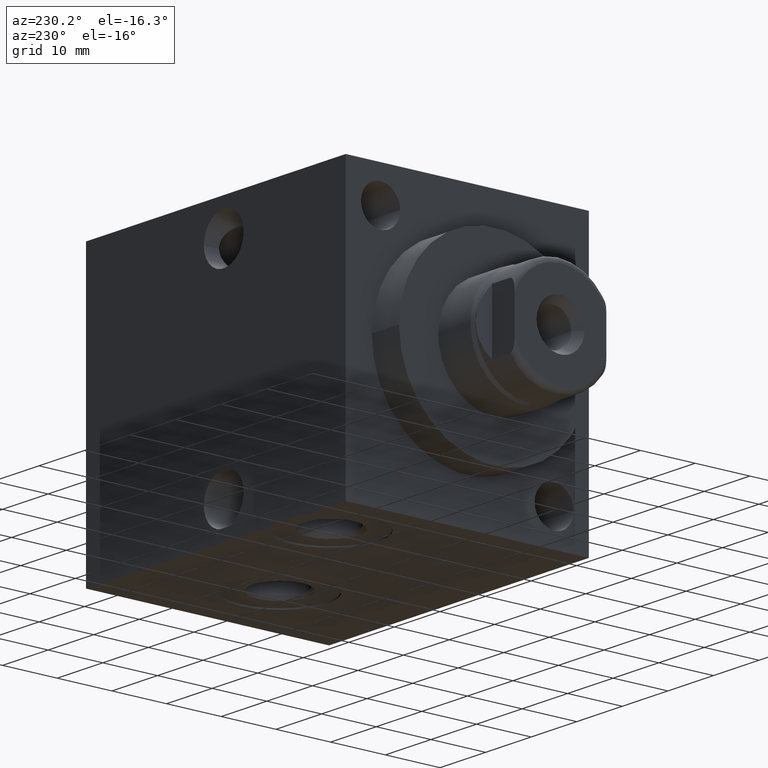
[diagram: clean part render]
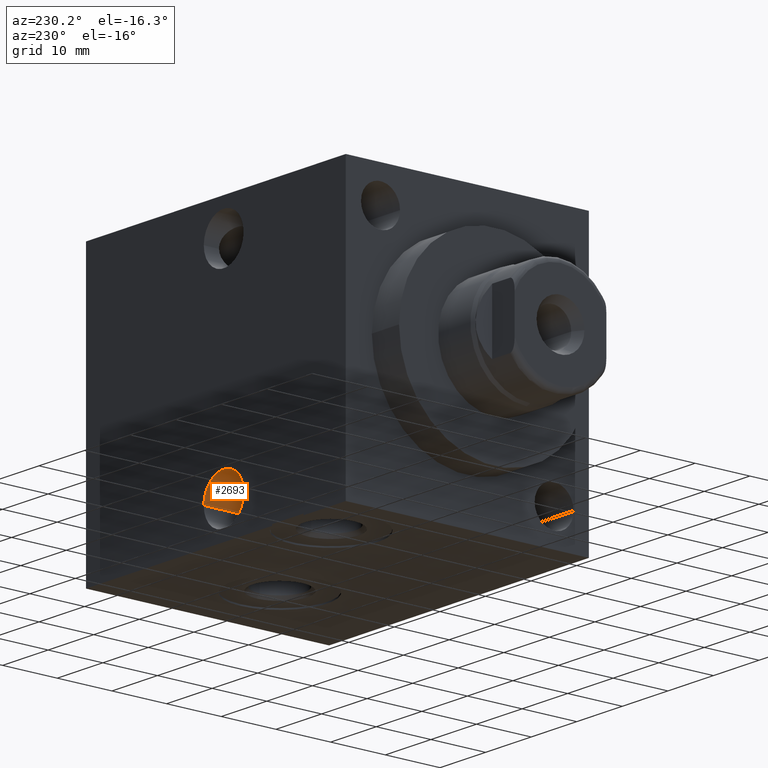
[diagram: same view with one face highlighted and labeled with its STEP entity id]
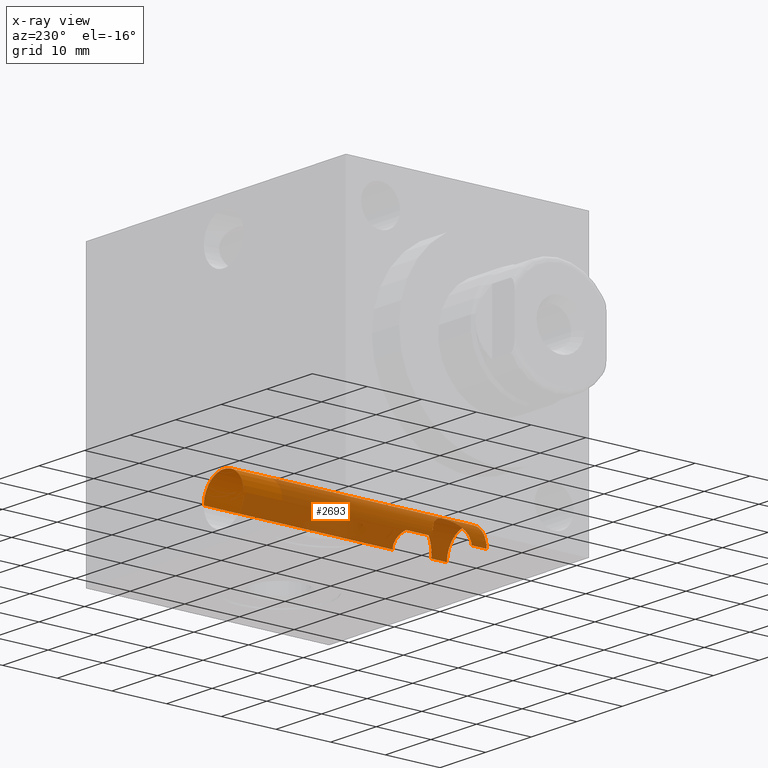
[diagram: x-ray of the same camera — body ghosted, the highlighted face saturated]
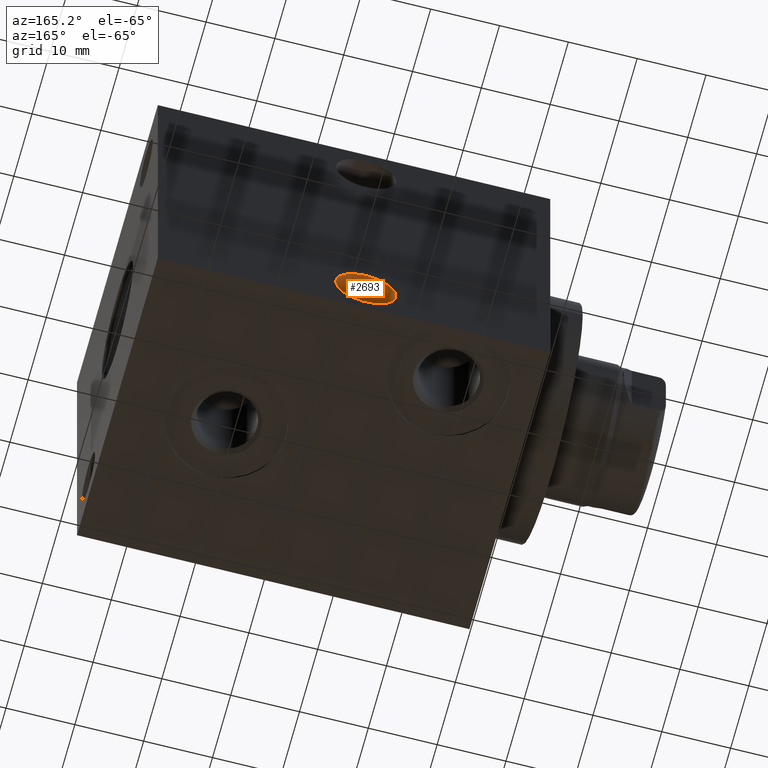
[diagram: same view with one face highlighted and labeled with its STEP entity id]
A machine part, auxiliary view. The second image highlights one B-rep face of the part: STEP entity #2693.
The next image is the same camera in x-ray: the body ghosted, the highlighted face saturated — about 78% of this face is hidden behind the body in this view.
A second angle (auxiliary view) of the same face is appended — the face is thin or edge-on in the first view.
In plain terms, the highlighted cylindrical surface (edge-blend (fillet) strip) has radius 4.369 mm, axis along (0, -1, 0).
Its self-contained STEP definition (entity closure, byte-faithful):
#598=CARTESIAN_POINT('',(2.6797E1,2.2225E1,-1.905E1));
#599=DIRECTION('',(0.E0,-1.E0,0.E0));
#600=DIRECTION('',(1.E0,0.E0,0.E0));
#601=AXIS2_PLACEMENT_3D('',#598,#599,#600);
#686=CARTESIAN_POINT('',(2.6797E1,-2.2225E1,-1.905E1));
#687=DIRECTION('',(0.E0,-1.E0,0.E0));
#688=DIRECTION('',(1.E0,0.E0,0.E0));
#689=AXIS2_PLACEMENT_3D('',#686,#687,#688);
#1197=CARTESIAN_POINT('',(2.2428E1,-1.23065E1,-1.905E1));
#1198=CARTESIAN_POINT('',(2.2428E1,-1.23065E1,-1.880714042471E1));
#1199=CARTESIAN_POINT('',(2.246858100033E1,-1.235601658674E1,
-1.832823511792E1));
#1200=CARTESIAN_POINT('',(2.263864558180E1,-1.256646460110E1,
-1.765492372784E1));
#1201=CARTESIAN_POINT('',(2.289127772720E1,-1.288850462507E1,
-1.705880112763E1));
#1202=CARTESIAN_POINT('',(2.320816159175E1,-1.331329244342E1,
-1.653497946056E1));
#1203=CARTESIAN_POINT('',(2.355989948914E1,-1.382995153063E1,
-1.610120747169E1));
#1204=CARTESIAN_POINT('',(2.388250586810E1,-1.438468563678E1,
-1.578737591831E1));
#1205=CARTESIAN_POINT('',(2.414098012707E1,-1.497635629900E1,
-1.557795625541E1));
#1206=CARTESIAN_POINT('',(2.428328724403E1,-1.558094661208E1,
-1.547646799754E1));
#1207=CARTESIAN_POINT('',(2.428108796117E1,-1.618575873833E1,
-1.547796945359E1));
#1208=CARTESIAN_POINT('',(2.413605437940E1,-1.678696200160E1,
-1.558167973805E1));
#1209=CARTESIAN_POINT('',(2.387817047612E1,-1.737313774894E1,
-1.579132983874E1));
#1210=CARTESIAN_POINT('',(2.355856070116E1,-1.792187298829E1,
-1.610297237395E1));
#1211=CARTESIAN_POINT('',(2.320993107570E1,-1.843417829003E1,
-1.653273790091E1));
#1212=CARTESIAN_POINT('',(2.289310121124E1,-1.885914471925E1,
-1.705516948242E1));
#1213=CARTESIAN_POINT('',(2.263914269798E1,-1.918292459291E1,
-1.765289522148E1));
#1214=CARTESIAN_POINT('',(2.246828693179E1,-1.939434535728E1,
-1.832943978825E1));
#1215=CARTESIAN_POINT('',(2.2428E1,-1.94435E1,-1.880782344083E1));
#1216=CARTESIAN_POINT('',(2.2428E1,-1.94435E1,-1.905E1));
#1228=CARTESIAN_POINT('',(3.1166E1,-1.94435E1,-1.905E1));
#1229=CARTESIAN_POINT('',(3.1166E1,-1.94435E1,-1.880715359577E1));
#1230=CARTESIAN_POINT('',(3.112546894886E1,-1.939404680603E1,
-1.832766714008E1));
#1231=CARTESIAN_POINT('',(3.095416124825E1,-1.918205809322E1,
-1.765075114366E1));
#1232=CARTESIAN_POINT('',(3.069958865976E1,-1.885744302998E1,
-1.705253908753E1));
#1233=CARTESIAN_POINT('',(3.038188437778E1,-1.843119435099E1,
-1.652946623751E1));
#1234=CARTESIAN_POINT('',(3.003087291953E1,-1.791493215042E1,
-1.609778771892E1));
#1235=CARTESIAN_POINT('',(2.970914944535E1,-1.736072334432E1,
-1.578532853191E1));
#1236=CARTESIAN_POINT('',(2.945133734086E1,-1.676892845640E1,
-1.557669532896E1));
#1237=CARTESIAN_POINT('',(2.930998166835E1,-1.616317074645E1,
-1.547596751731E1));
#1238=CARTESIAN_POINT('',(2.931363509729E1,-1.555864355658E1,
-1.547846136629E1));
#1239=CARTESIAN_POINT('',(2.945996607982E1,-1.495737518484E1,
-1.558320055945E1));
#1240=CARTESIAN_POINT('',(2.971796109369E1,-1.437297016043E1,
-1.579325243227E1));
#1241=CARTESIAN_POINT('',(3.003652494705E1,-1.382654126404E1,
-1.610427831996E1));
#1242=CARTESIAN_POINT('',(3.038352881863E1,-1.331662847958E1,
-1.653216825174E1));
#1243=CARTESIAN_POINT('',(3.069970553281E1,-1.289240655865E1,
-1.705289559208E1));
#1244=CARTESIAN_POINT('',(3.095431489108E1,-1.256774737781E1,
-1.765106649777E1));
#1245=CARTESIAN_POINT('',(3.112566929213E1,-1.235570766977E1,
-1.832883494298E1));
#1246=CARTESIAN_POINT('',(3.1166E1,-1.23065E1,-1.880765461730E1));
#1247=CARTESIAN_POINT('',(3.1166E1,-1.23065E1,-1.905E1));
#1259=DIRECTION('',(0.E0,-1.E0,0.E0));
#1260=VECTOR('',#1259,2.7815E0);
#1261=CARTESIAN_POINT('',(3.1166E1,-1.94435E1,-1.905E1));
#1262=LINE('',#1261,#1260);
#1266=DIRECTION('',(0.E0,-1.E0,0.E0));
#1267=VECTOR('',#1266,3.45315E1);
#1268=CARTESIAN_POINT('',(3.1166E1,2.2225E1,-1.905E1));
#1269=LINE('',#1268,#1267);
#1273=DIRECTION('',(0.E0,-1.E0,0.E0));
#1274=VECTOR('',#1273,2.7815E0);
#1275=CARTESIAN_POINT('',(2.2428E1,-1.94435E1,-1.905E1));
#1276=LINE('',#1275,#1274);
#1280=DIRECTION('',(0.E0,-1.E0,0.E0));
#1281=VECTOR('',#1280,3.45315E1);
#1282=CARTESIAN_POINT('',(2.2428E1,2.2225E1,-1.905E1));
#1283=LINE('',#1282,#1281);
#1468=CARTESIAN_POINT('',(3.1166E1,-2.2225E1,-1.905E1));
#1469=CARTESIAN_POINT('',(2.2428E1,-2.2225E1,-1.905E1));
#1470=VERTEX_POINT('',#1468);
#1471=VERTEX_POINT('',#1469);
#1472=CARTESIAN_POINT('',(3.1166E1,2.2225E1,-1.905E1));
#1473=CARTESIAN_POINT('',(2.2428E1,2.2225E1,-1.905E1));
#1474=VERTEX_POINT('',#1472);
#1475=VERTEX_POINT('',#1473);
#1476=CARTESIAN_POINT('',(3.1166E1,-1.23065E1,-1.905E1));
#1477=VERTEX_POINT('',#1476);
#1478=CARTESIAN_POINT('',(3.1166E1,-1.94435E1,-1.905E1));
#1479=VERTEX_POINT('',#1478);
#1480=CARTESIAN_POINT('',(2.2428E1,-1.23065E1,-1.905E1));
#1481=VERTEX_POINT('',#1480);
#1482=CARTESIAN_POINT('',(2.2428E1,-1.94435E1,-1.905E1));
#1483=VERTEX_POINT('',#1482);
#2674=CARTESIAN_POINT('',(2.6797E1,2.2225E1,-1.905E1));
#2675=DIRECTION('',(0.E0,-1.E0,0.E0));
#2676=DIRECTION('',(1.E0,0.E0,0.E0));
#2677=AXIS2_PLACEMENT_3D('',#2674,#2675,#2676);
#2678=CYLINDRICAL_SURFACE('',#2677,4.369E0);
#2679=ORIENTED_EDGE('',*,*,#2254,.F.);
#2681=ORIENTED_EDGE('',*,*,#2680,.F.);
#2682=ORIENTED_EDGE('',*,*,#2664,.T.);
#2684=ORIENTED_EDGE('',*,*,#2683,.F.);
#2685=ORIENTED_EDGE('',*,*,#2206,.T.);
#2687=ORIENTED_EDGE('',*,*,#2686,.T.);
#2688=ORIENTED_EDGE('',*,*,#2649,.T.);
#2690=ORIENTED_EDGE('',*,*,#2689,.T.);
#2691=EDGE_LOOP('',(#2679,#2681,#2682,#2684,#2685,#2687,#2688,#2690));
#2692=FACE_OUTER_BOUND('',#2691,.F.);
#2693=ADVANCED_FACE('',(#2692),#2678,.F.);
#602=CIRCLE('',#601,4.369E0);
#690=CIRCLE('',#689,4.369E0);
#1217=B_SPLINE_CURVE_WITH_KNOTS('',3,(#1197,#1198,#1199,#1200,#1201,#1202,#1203,
#1204,#1205,#1206,#1207,#1208,#1209,#1210,#1211,#1212,#1213,#1214,#1215,#1216),
.UNSPECIFIED.,.F.,.F.,(4,1,1,1,1,1,1,1,1,1,1,1,1,1,1,1,1,4),(0.E0,
5.882352941176E-2,1.176470588235E-1,1.764705882353E-1,2.352941176471E-1,
2.941176470588E-1,3.529411764706E-1,4.117647058824E-1,4.705882352941E-1,
5.294117647059E-1,5.882352941176E-1,6.470588235294E-1,7.058823529412E-1,
7.647058823529E-1,8.235294117647E-1,8.823529411765E-1,9.411764705882E-1,1.E0),
.UNSPECIFIED.);
#1248=B_SPLINE_CURVE_WITH_KNOTS('',3,(#1228,#1229,#1230,#1231,#1232,#1233,#1234,
#1235,#1236,#1237,#1238,#1239,#1240,#1241,#1242,#1243,#1244,#1245,#1246,#1247),
.UNSPECIFIED.,.F.,.F.,(4,1,1,1,1,1,1,1,1,1,1,1,1,1,1,1,1,4),(0.E0,
5.882352941176E-2,1.176470588235E-1,1.764705882353E-1,2.352941176471E-1,
2.941176470588E-1,3.529411764706E-1,4.117647058824E-1,4.705882352941E-1,
5.294117647059E-1,5.882352941176E-1,6.470588235294E-1,7.058823529412E-1,
7.647058823529E-1,8.235294117647E-1,8.823529411765E-1,9.411764705882E-1,1.E0),
.UNSPECIFIED.);
#2206=EDGE_CURVE('',#1474,#1475,#602,.T.);
#2254=EDGE_CURVE('',#1470,#1471,#690,.T.);
#2649=EDGE_CURVE('',#1481,#1483,#1217,.T.);
#2664=EDGE_CURVE('',#1479,#1477,#1248,.T.);
#2680=EDGE_CURVE('',#1479,#1470,#1262,.T.);
#2683=EDGE_CURVE('',#1474,#1477,#1269,.T.);
#2686=EDGE_CURVE('',#1475,#1481,#1283,.T.);
#2689=EDGE_CURVE('',#1483,#1471,#1276,.T.);